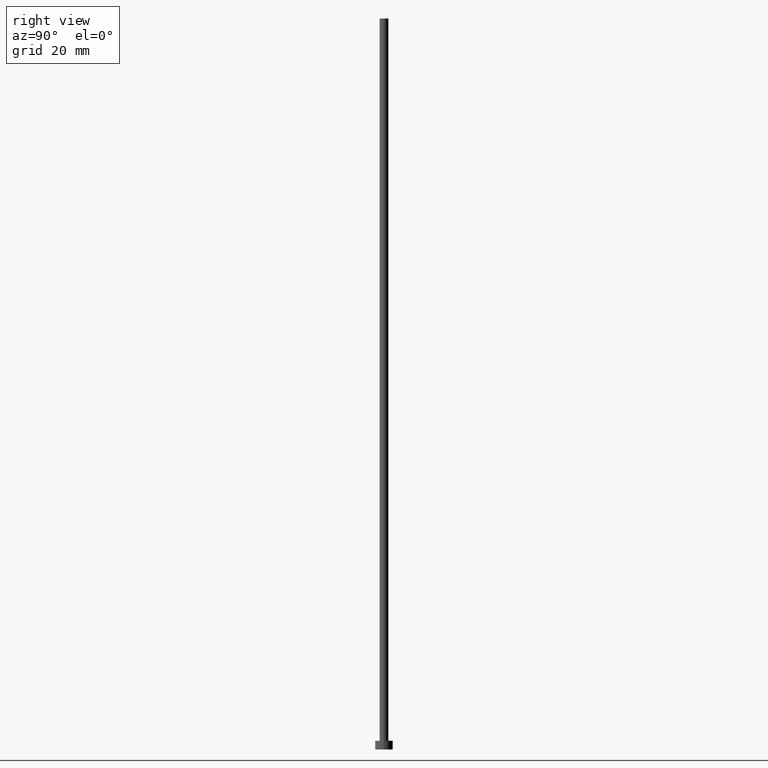
[diagram: clean part render]
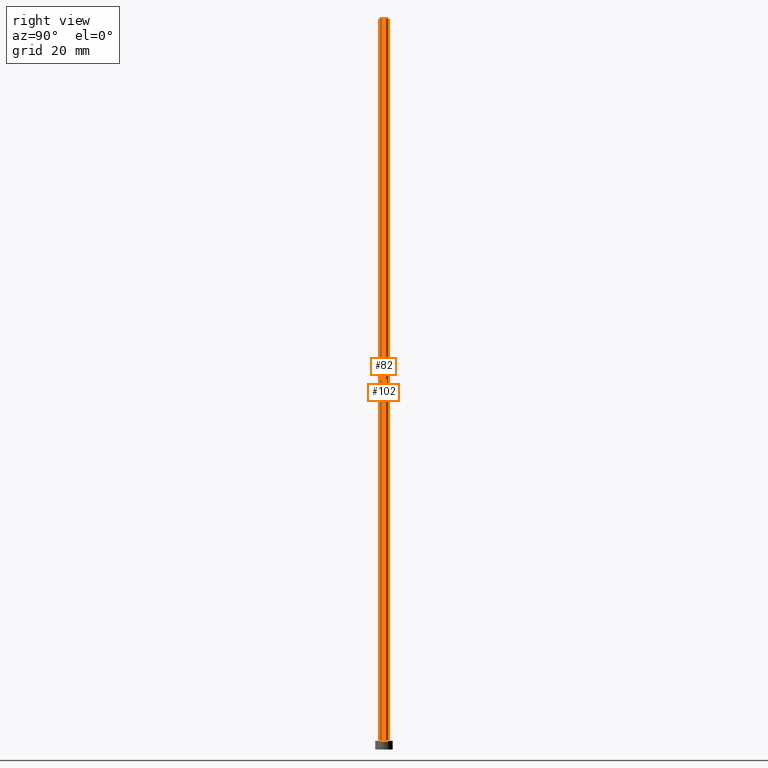
[diagram: same view with one multi-face feature highlighted, each face labeled with its STEP entity id]
A machine part, right view. The highlighted faces form ONE feature: a constant-radius fillet chain: 2 tangent blend faces with common blend radius 1.5 mm. The faces share edges in the B-rep.
Their STEP definitions:
[1] entity #102 (Cylinder):
#6 = EDGE_CURVE ( 'NONE', #217, #23, #127, .T. ) ;
#10 = CYLINDRICAL_SURFACE ( 'NONE', #107, 1.500000000000000222 ) ;
#23 = VERTEX_POINT ( 'NONE', #24 ) ;
#24 = CARTESIAN_POINT ( 'NONE',  ( -1.500000000000000222, 0.000000000000000000, 250.0000000000000000 ) ) ;
#27 = DIRECTION ( 'NONE',  ( 0.000000000000000000, 0.000000000000000000, 1.000000000000000000 ) ) ;
#29 = DIRECTION ( 'NONE',  ( -0.000000000000000000, -0.000000000000000000, -1.000000000000000000 ) ) ;
#30 = DIRECTION ( 'NONE',  ( 1.000000000000000000, 0.000000000000000000, 0.000000000000000000 ) ) ;
#38 = DIRECTION ( 'NONE',  ( -0.000000000000000000, -0.000000000000000000, -1.000000000000000000 ) ) ;
#50 = CARTESIAN_POINT ( 'NONE',  ( 1.500000000000000222, 1.836970198721030181E-16, 3.000000000000000000 ) ) ;
#54 = CARTESIAN_POINT ( 'NONE',  ( -1.500000000000000222, 0.000000000000000000, 250.0000000000000000 ) ) ;
#55 = DIRECTION ( 'NONE',  ( -0.000000000000000000, -0.000000000000000000, -1.000000000000000000 ) ) ;
#64 = VERTEX_POINT ( 'NONE', #164 ) ;
#88 = LINE ( 'NONE', #54, #249 ) ;
#89 = ORIENTED_EDGE ( 'NONE', *, *, #132, .F. ) ;
#102 = ADVANCED_FACE ( 'NONE', ( #153 ), #10, .T. ) ;
#107 = AXIS2_PLACEMENT_3D ( 'NONE', #227, #55, #133 ) ;
#114 = AXIS2_PLACEMENT_3D ( 'NONE', #195, #224, #171 ) ;
#122 = VECTOR ( 'NONE', #38, 1000.000000000000000 ) ;
#127 = CIRCLE ( 'NONE', #136, 1.500000000000000222 ) ;
#132 = EDGE_CURVE ( 'NONE', #23, #64, #88, .T. ) ;
#133 = DIRECTION ( 'NONE',  ( -1.000000000000000000, 0.000000000000000000, 0.000000000000000000 ) ) ;
#136 = AXIS2_PLACEMENT_3D ( 'NONE', #223, #27, #30 ) ;
#153 = FACE_OUTER_BOUND ( 'NONE', #200, .T. ) ;
#159 = EDGE_CURVE ( 'NONE', #203, #64, #221, .T. ) ;
#160 = ORIENTED_EDGE ( 'NONE', *, *, #159, .T. ) ;
#164 = CARTESIAN_POINT ( 'NONE',  ( -1.500000000000000222, 0.000000000000000000, 3.000000000000000000 ) ) ;
#169 = CARTESIAN_POINT ( 'NONE',  ( 1.500000000000000222, 1.836970198721030181E-16, 250.0000000000000000 ) ) ;
#171 = DIRECTION ( 'NONE',  ( 1.000000000000000000, 0.000000000000000000, 0.000000000000000000 ) ) ;
#180 = ORIENTED_EDGE ( 'NONE', *, *, #218, .T. ) ;
#192 = LINE ( 'NONE', #169, #122 ) ;
#195 = CARTESIAN_POINT ( 'NONE',  ( 0.000000000000000000, 0.000000000000000000, 3.000000000000000000 ) ) ;
#198 = ORIENTED_EDGE ( 'NONE', *, *, #6, .F. ) ;
#200 = EDGE_LOOP ( 'NONE', ( #198, #180, #160, #89 ) ) ;
#203 = VERTEX_POINT ( 'NONE', #50 ) ;
#217 = VERTEX_POINT ( 'NONE', #231 ) ;
#218 = EDGE_CURVE ( 'NONE', #217, #203, #192, .T. ) ;
#221 = CIRCLE ( 'NONE', #114, 1.500000000000000222 ) ;
#223 = CARTESIAN_POINT ( 'NONE',  ( 0.000000000000000000, 0.000000000000000000, 250.0000000000000000 ) ) ;
#224 = DIRECTION ( 'NONE',  ( 0.000000000000000000, 0.000000000000000000, 1.000000000000000000 ) ) ;
#227 = CARTESIAN_POINT ( 'NONE',  ( 0.000000000000000000, 0.000000000000000000, 250.0000000000000000 ) ) ;
#231 = CARTESIAN_POINT ( 'NONE',  ( 1.500000000000000222, 1.836970198721030181E-16, 250.0000000000000000 ) ) ;
#249 = VECTOR ( 'NONE', #29, 1000.000000000000000 ) ;
[2] entity #82 (Cylinder):
#11 = CARTESIAN_POINT ( 'NONE',  ( 0.000000000000000000, 0.000000000000000000, 250.0000000000000000 ) ) ;
#19 = ORIENTED_EDGE ( 'NONE', *, *, #218, .F. ) ;
#23 = VERTEX_POINT ( 'NONE', #24 ) ;
#24 = CARTESIAN_POINT ( 'NONE',  ( -1.500000000000000222, 0.000000000000000000, 250.0000000000000000 ) ) ;
#25 = AXIS2_PLACEMENT_3D ( 'NONE', #11, #170, #245 ) ;
#29 = DIRECTION ( 'NONE',  ( -0.000000000000000000, -0.000000000000000000, -1.000000000000000000 ) ) ;
#34 = DIRECTION ( 'NONE',  ( 0.000000000000000000, 0.000000000000000000, 1.000000000000000000 ) ) ;
#38 = DIRECTION ( 'NONE',  ( -0.000000000000000000, -0.000000000000000000, -1.000000000000000000 ) ) ;
#40 = ORIENTED_EDGE ( 'NONE', *, *, #132, .T. ) ;
#50 = CARTESIAN_POINT ( 'NONE',  ( 1.500000000000000222, 1.836970198721030181E-16, 3.000000000000000000 ) ) ;
#53 = CYLINDRICAL_SURFACE ( 'NONE', #92, 1.500000000000000222 ) ;
#54 = CARTESIAN_POINT ( 'NONE',  ( -1.500000000000000222, 0.000000000000000000, 250.0000000000000000 ) ) ;
#64 = VERTEX_POINT ( 'NONE', #164 ) ;
#70 = FACE_OUTER_BOUND ( 'NONE', #83, .T. ) ;
#82 = ADVANCED_FACE ( 'NONE', ( #70 ), #53, .T. ) ;
#83 = EDGE_LOOP ( 'NONE', ( #19, #105, #40, #142 ) ) ;
#88 = LINE ( 'NONE', #54, #249 ) ;
#92 = AXIS2_PLACEMENT_3D ( 'NONE', #149, #131, #112 ) ;
#96 = AXIS2_PLACEMENT_3D ( 'NONE', #110, #34, #150 ) ;
#99 = CIRCLE ( 'NONE', #96, 1.500000000000000222 ) ;
#105 = ORIENTED_EDGE ( 'NONE', *, *, #141, .F. ) ;
#110 = CARTESIAN_POINT ( 'NONE',  ( 0.000000000000000000, 0.000000000000000000, 3.000000000000000000 ) ) ;
#112 = DIRECTION ( 'NONE',  ( -1.000000000000000000, 0.000000000000000000, 0.000000000000000000 ) ) ;
#122 = VECTOR ( 'NONE', #38, 1000.000000000000000 ) ;
#131 = DIRECTION ( 'NONE',  ( -0.000000000000000000, -0.000000000000000000, -1.000000000000000000 ) ) ;
#132 = EDGE_CURVE ( 'NONE', #23, #64, #88, .T. ) ;
#138 = CIRCLE ( 'NONE', #25, 1.500000000000000222 ) ;
#141 = EDGE_CURVE ( 'NONE', #23, #217, #138, .T. ) ;
#142 = ORIENTED_EDGE ( 'NONE', *, *, #216, .T. ) ;
#149 = CARTESIAN_POINT ( 'NONE',  ( 0.000000000000000000, 0.000000000000000000, 250.0000000000000000 ) ) ;
#150 = DIRECTION ( 'NONE',  ( 1.000000000000000000, 0.000000000000000000, 0.000000000000000000 ) ) ;
#164 = CARTESIAN_POINT ( 'NONE',  ( -1.500000000000000222, 0.000000000000000000, 3.000000000000000000 ) ) ;
#169 = CARTESIAN_POINT ( 'NONE',  ( 1.500000000000000222, 1.836970198721030181E-16, 250.0000000000000000 ) ) ;
#170 = DIRECTION ( 'NONE',  ( 0.000000000000000000, 0.000000000000000000, 1.000000000000000000 ) ) ;
#192 = LINE ( 'NONE', #169, #122 ) ;
#203 = VERTEX_POINT ( 'NONE', #50 ) ;
#216 = EDGE_CURVE ( 'NONE', #64, #203, #99, .T. ) ;
#217 = VERTEX_POINT ( 'NONE', #231 ) ;
#218 = EDGE_CURVE ( 'NONE', #217, #203, #192, .T. ) ;
#231 = CARTESIAN_POINT ( 'NONE',  ( 1.500000000000000222, 1.836970198721030181E-16, 250.0000000000000000 ) ) ;
#245 = DIRECTION ( 'NONE',  ( 1.000000000000000000, 0.000000000000000000, 0.000000000000000000 ) ) ;
#249 = VECTOR ( 'NONE', #29, 1000.000000000000000 ) ;